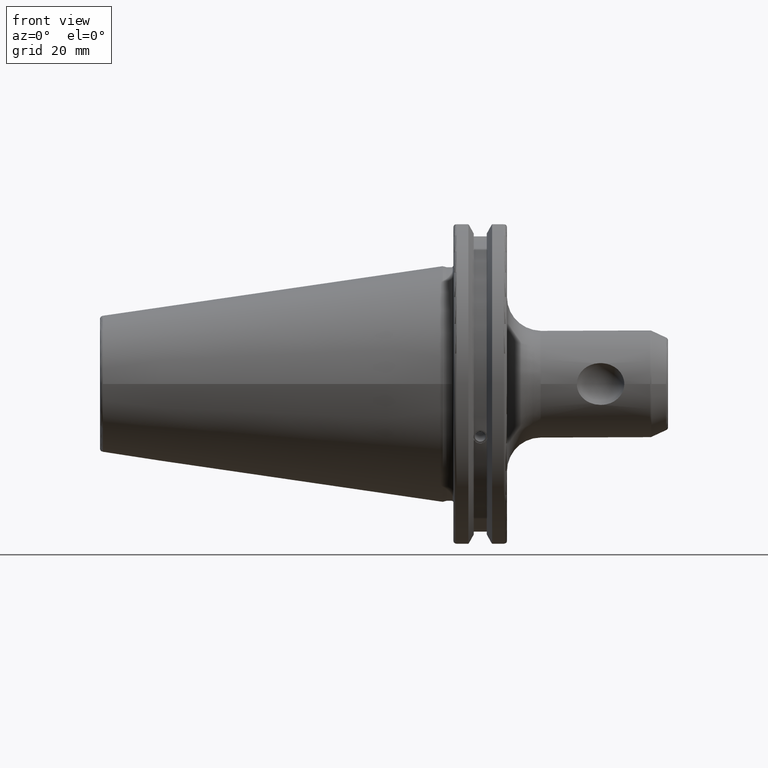
[diagram: clean part render]
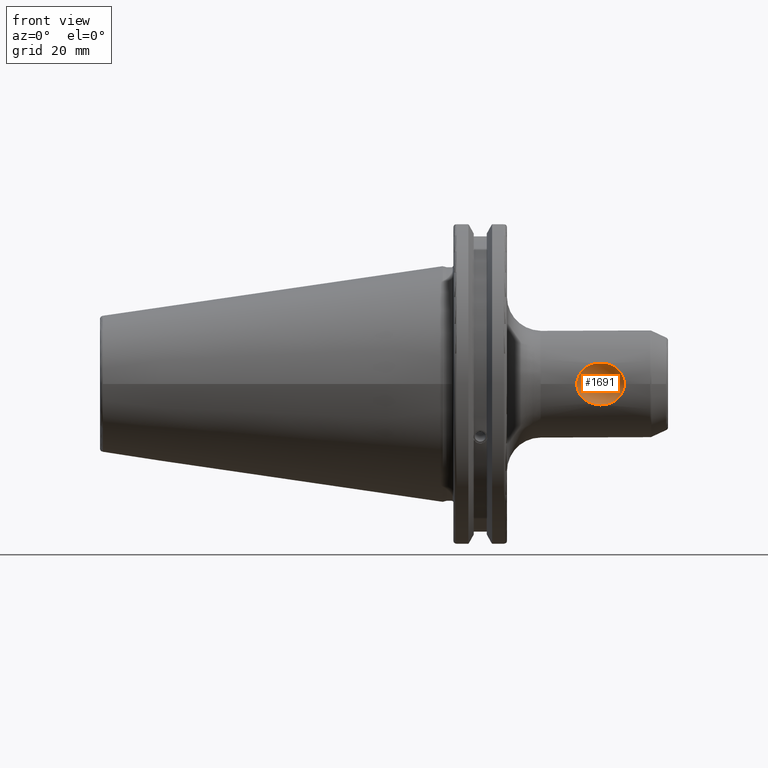
[diagram: same view with one face highlighted and labeled with its STEP entity id]
A machine part, front view. The second image highlights one B-rep face of the part: STEP entity #1691.
In plain terms, the highlighted spherical surface has radius 8 mm.
Its self-contained STEP definition (entity closure, byte-faithful):
#444=FACE_OUTER_BOUND('',#533,.T.);
#533=EDGE_LOOP('',(#1150,#1151,#1152));
#643=B_SPLINE_CURVE_WITH_KNOTS('',3,(#2510,#2511,#2512,#2513,#2514,#2515,
#2516,#2517,#2518,#2519,#2520,#2521),.UNSPECIFIED.,.F.,.F.,(4,2,2,2,2,4),
(0.,0.355478019128927,0.533217028693391,0.710956038257855,0.86521381872684,
1.01947159919583),.UNSPECIFIED.);
#644=B_SPLINE_CURVE_WITH_KNOTS('',3,(#2523,#2524,#2525,#2526,#2527,#2528,
#2529,#2530,#2531,#2532,#2533,#2534),.UNSPECIFIED.,.F.,.F.,(4,2,2,2,2,4),
(3.05841479758748,3.21267257805646,3.36693035852545,3.54466936808991,3.72240837765438,
4.0778863967833),.UNSPECIFIED.);
#645=B_SPLINE_CURVE_WITH_KNOTS('',3,(#2535,#2536,#2537,#2538,#2539,#2540,
#2541,#2542,#2543,#2544,#2545,#2546,#2547,#2548,#2549,#2550,#2551,#2552,
#2553,#2554,#2555,#2556),.UNSPECIFIED.,.F.,.F.,(4,2,2,2,2,2,2,2,2,2,4),
(1.01947159919583,1.17372937966481,1.3279871601338,1.50572616969826,1.68346517926272,
2.03894319839165,2.39442121752058,2.57216022708504,2.74989923664951,2.90415701711849,
3.05841479758748),.UNSPECIFIED.);
#688=VERTEX_POINT('',#2508);
#689=VERTEX_POINT('',#2509);
#690=VERTEX_POINT('',#2522);
#880=EDGE_CURVE('',#688,#689,#643,.T.);
#881=EDGE_CURVE('',#690,#688,#644,.T.);
#882=EDGE_CURVE('',#689,#690,#645,.T.);
#1150=ORIENTED_EDGE('',*,*,#880,.F.);
#1151=ORIENTED_EDGE('',*,*,#881,.F.);
#1152=ORIENTED_EDGE('',*,*,#882,.F.);
#1690=SPHERICAL_SURFACE('',#1800,8.);
#1691=ADVANCED_FACE('',(#444),#1690,.F.);
#1800=AXIS2_PLACEMENT_3D('',#2507,#2005,#2006);
#2005=DIRECTION('center_axis',(0.,0.,1.));
#2006=DIRECTION('ref_axis',(1.,0.,0.));
#2507=CARTESIAN_POINT('Origin',(46.8,-19.675,0.));
#2508=CARTESIAN_POINT('',(46.8,-14.6155336721728,-6.19691862763929));
#2509=CARTESIAN_POINT('',(39.7601136372808,-15.875,-2.08228642144837E-15));
#2510=CARTESIAN_POINT('Ctrl Pts',(46.8,-14.6155336721728,-6.19691862763929));
#2511=CARTESIAN_POINT('Ctrl Pts',(45.6150732695702,-14.6155336721728,-6.19691862763929));
#2512=CARTESIAN_POINT('Ctrl Pts',(44.3721401786213,-14.7353988505044,-5.93367097035273));
#2513=CARTESIAN_POINT('Ctrl Pts',(42.7442443572467,-15.0260726769078,-5.12971484732487));
#2514=CARTESIAN_POINT('Ctrl Pts',(42.2393241129432,-15.139069529473,-4.79494049463211));
#2515=CARTESIAN_POINT('Ctrl Pts',(41.3479689579188,-15.3658771039299,-4.0090773888823));
#2516=CARTESIAN_POINT('Ctrl Pts',(40.9614667099785,-15.4793610664714,-3.55797074185429));
#2517=CARTESIAN_POINT('Ctrl Pts',(40.3801268308484,-15.6610688997875,-2.63400448865546));
#2518=CARTESIAN_POINT('Ctrl Pts',(40.1447157953839,-15.740534039926,-2.1295319548808));
#2519=CARTESIAN_POINT('Ctrl Pts',(39.834614384992,-15.8478731562006,-1.06969151523261));
#2520=CARTESIAN_POINT('Ctrl Pts',(39.7601136372808,-15.875,-0.514192601563286));
#2521=CARTESIAN_POINT('Ctrl Pts',(39.7601136372808,-15.875,-1.80411241501588E-15));
#2522=CARTESIAN_POINT('',(53.8398863627192,-15.875,-2.0128974824093E-15));
#2523=CARTESIAN_POINT('Ctrl Pts',(53.8398863627192,-15.875,-2.08166817117217E-15));
#2524=CARTESIAN_POINT('Ctrl Pts',(53.8398863627192,-15.875,-0.514192601563286));
#2525=CARTESIAN_POINT('Ctrl Pts',(53.765385615008,-15.8478731562006,-1.06969151523261));
#2526=CARTESIAN_POINT('Ctrl Pts',(53.455284204616,-15.740534039926,-2.12953195488079));
#2527=CARTESIAN_POINT('Ctrl Pts',(53.2198731691516,-15.6610688997875,-2.63400448865546));
#2528=CARTESIAN_POINT('Ctrl Pts',(52.6385332900215,-15.4793610664714,-3.55797074185429));
#2529=CARTESIAN_POINT('Ctrl Pts',(52.2520310420812,-15.3658771039299,-4.00907738888231));
#2530=CARTESIAN_POINT('Ctrl Pts',(51.3606758870568,-15.139069529473,-4.79494049463212));
#2531=CARTESIAN_POINT('Ctrl Pts',(50.8557556427533,-15.0260726769078,-5.12971484732487));
#2532=CARTESIAN_POINT('Ctrl Pts',(49.2278598213787,-14.7353988505044,-5.93367097035273));
#2533=CARTESIAN_POINT('Ctrl Pts',(47.9849267304298,-14.6155336721728,-6.19691862763929));
#2534=CARTESIAN_POINT('Ctrl Pts',(46.8,-14.6155336721728,-6.19691862763929));
#2535=CARTESIAN_POINT('Ctrl Pts',(39.7601136372808,-15.875,-1.80411241501588E-15));
#2536=CARTESIAN_POINT('Ctrl Pts',(39.7601136372808,-15.875,0.514192601563282));
#2537=CARTESIAN_POINT('Ctrl Pts',(39.834614384992,-15.8478731562006,1.0696915152326));
#2538=CARTESIAN_POINT('Ctrl Pts',(40.1447157953839,-15.740534039926,2.12953195488079));
#2539=CARTESIAN_POINT('Ctrl Pts',(40.3801268308484,-15.6610688997875,2.63400448865545));
#2540=CARTESIAN_POINT('Ctrl Pts',(40.9614667099785,-15.4793610664714,3.55797074185429));
#2541=CARTESIAN_POINT('Ctrl Pts',(41.3479689579188,-15.3658771039299,4.0090773888823));
#2542=CARTESIAN_POINT('Ctrl Pts',(42.2393241129432,-15.139069529473,4.79494049463212));
#2543=CARTESIAN_POINT('Ctrl Pts',(42.7442443572467,-15.0260726769078,5.12971484732487));
#2544=CARTESIAN_POINT('Ctrl Pts',(44.3721401786213,-14.7353988505044,5.93367097035273));
#2545=CARTESIAN_POINT('Ctrl Pts',(45.6150732695702,-14.6155336721728,6.19691862763929));
#2546=CARTESIAN_POINT('Ctrl Pts',(47.9849267304298,-14.6155336721728,6.19691862763929));
#2547=CARTESIAN_POINT('Ctrl Pts',(49.2278598213787,-14.7353988505044,5.93367097035273));
#2548=CARTESIAN_POINT('Ctrl Pts',(50.8557556427533,-15.0260726769078,5.12971484732487));
#2549=CARTESIAN_POINT('Ctrl Pts',(51.3606758870568,-15.139069529473,4.79494049463211));
#2550=CARTESIAN_POINT('Ctrl Pts',(52.2520310420812,-15.3658771039299,4.00907738888229));
#2551=CARTESIAN_POINT('Ctrl Pts',(52.6385332900215,-15.4793610664714,3.55797074185429));
#2552=CARTESIAN_POINT('Ctrl Pts',(53.2198731691516,-15.6610688997875,2.63400448865545));
#2553=CARTESIAN_POINT('Ctrl Pts',(53.455284204616,-15.740534039926,2.12953195488079));
#2554=CARTESIAN_POINT('Ctrl Pts',(53.765385615008,-15.8478731562006,1.0696915152326));
#2555=CARTESIAN_POINT('Ctrl Pts',(53.8398863627192,-15.875,0.514192601563282));
#2556=CARTESIAN_POINT('Ctrl Pts',(53.8398863627192,-15.875,-2.22044604925031E-15));